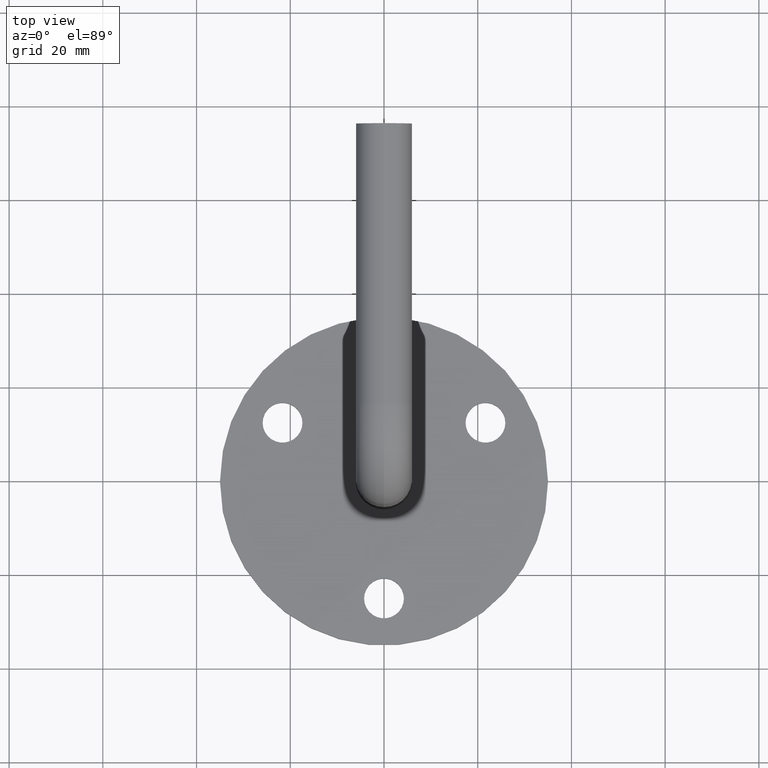
[diagram: clean part render]
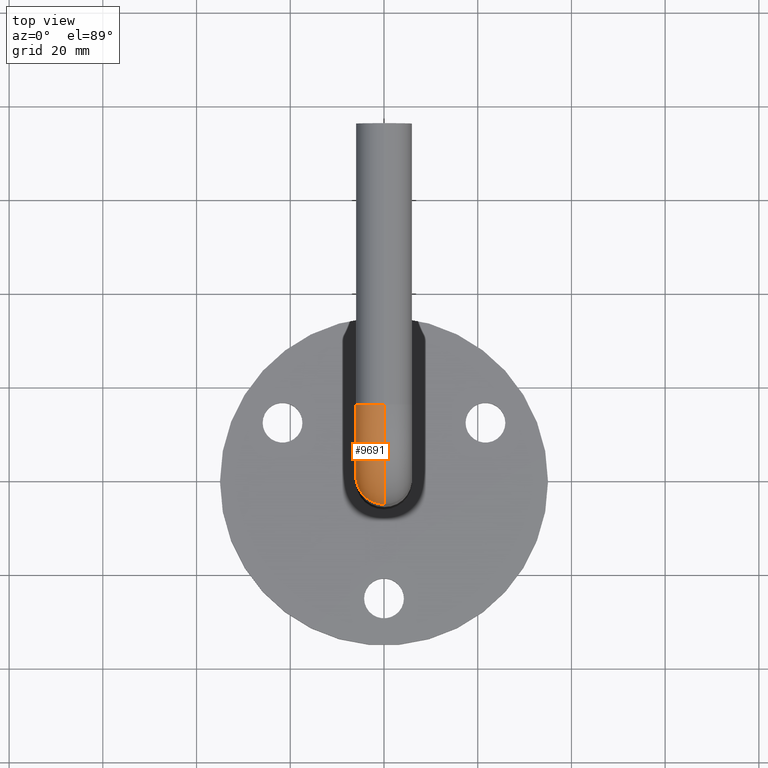
[diagram: same view with one face highlighted and labeled with its STEP entity id]
A machine part, top view. The second image highlights one B-rep face of the part: STEP entity #9691.
In plain terms, the highlighted toroidal blend (fillet) surface has major radius 15 mm and minor (blend) radius 6 mm.
Its self-contained STEP definition (entity closure, byte-faithful):
#337 = CARTESIAN_POINT ( 'NONE',  ( 7.347880794884120722E-16, 14.99999999999999112, 65.00000000000000000 ) ) ;
#923 = CARTESIAN_POINT ( 'NONE',  ( 0.000000000000000000, 14.99999999999999112, 65.00000000000000000 ) ) ;
#2065 = DIRECTION ( 'NONE',  ( -1.000000000000000000, -0.000000000000000000, 0.000000000000000000 ) ) ;
#2244 = DIRECTION ( 'NONE',  ( -1.000000000000000000, -0.000000000000000000, 0.000000000000000000 ) ) ;
#2280 = ORIENTED_EDGE ( 'NONE', *, *, #5494, .T. ) ;
#2287 = VERTEX_POINT ( 'NONE', #4028 ) ;
#3392 = CARTESIAN_POINT ( 'NONE',  ( 0.000000000000000000, 14.99999999999999112, 65.00000000000000000 ) ) ;
#4028 = CARTESIAN_POINT ( 'NONE',  ( 0.000000000000000000, 5.999999999999992895, 64.99999999999988631 ) ) ;
#4719 = DIRECTION ( 'NONE',  ( 0.000000000000000000, 0.000000000000000000, -1.000000000000000000 ) ) ;
#4754 = ORIENTED_EDGE ( 'NONE', *, *, #7521, .F. ) ;
#4774 = VERTEX_POINT ( 'NONE', #10979 ) ;
#5205 = CIRCLE ( 'NONE', #6105, 21.00000000000000355 ) ;
#5414 = AXIS2_PLACEMENT_3D ( 'NONE', #337, #6937, #14839 ) ;
#5494 = EDGE_CURVE ( 'NONE', #13477, #4774, #12696, .T. ) ;
#6105 = AXIS2_PLACEMENT_3D ( 'NONE', #923, #2244, #7249 ) ;
#6531 = CARTESIAN_POINT ( 'NONE',  ( 0.000000000000000000, 15.00000000000018296, 86.00000000000000000 ) ) ;
#6937 = DIRECTION ( 'NONE',  ( -1.000000000000000000, -0.000000000000000000, 0.000000000000000000 ) ) ;
#7249 = DIRECTION ( 'NONE',  ( 0.000000000000000000, 0.000000000000000000, 1.000000000000000000 ) ) ;
#7291 = DIRECTION ( 'NONE',  ( 0.000000000000000000, 0.000000000000000000, 1.000000000000000000 ) ) ;
#7366 = AXIS2_PLACEMENT_3D ( 'NONE', #3392, #2065, #7291 ) ;
#7521 = EDGE_CURVE ( 'NONE', #13592, #2287, #14341, .T. ) ;
#8206 = EDGE_CURVE ( 'NONE', #13592, #13477, #5205, .T. ) ;
#9356 = EDGE_LOOP ( 'NONE', ( #4754, #12149, #2280, #11123 ) ) ;
#9691 = ADVANCED_FACE ( 'NONE', ( #16867 ), #12095, .T. ) ;
#9695 = CIRCLE ( 'NONE', #5414, 8.999999999999994671 ) ;
#10979 = CARTESIAN_POINT ( 'NONE',  ( 7.347880794884114806E-16, 15.00000000000001066, 74.00000000000000000 ) ) ;
#11123 = ORIENTED_EDGE ( 'NONE', *, *, #14883, .F. ) ;
#12095 = TOROIDAL_SURFACE ( 'NONE', #7366, 15.00000000000000000, 6.000000000000000888 ) ;
#12149 = ORIENTED_EDGE ( 'NONE', *, *, #8206, .T. ) ;
#12696 = CIRCLE ( 'NONE', #15434, 6.000000000000000888 ) ;
#13412 = CARTESIAN_POINT ( 'NONE',  ( 0.000000000000000000, 15.00000000000009592, 80.00000000000000000 ) ) ;
#13477 = VERTEX_POINT ( 'NONE', #6531 ) ;
#13592 = VERTEX_POINT ( 'NONE', #14785 ) ;
#13693 = DIRECTION ( 'NONE',  ( -1.000000000000000000, 0.000000000000000000, 0.000000000000000000 ) ) ;
#14125 = CARTESIAN_POINT ( 'NONE',  ( 0.000000000000000000, -7.960204194457784630E-15, 64.99999999999988631 ) ) ;
#14341 = CIRCLE ( 'NONE', #15344, 6.000000000000000888 ) ;
#14785 = CARTESIAN_POINT ( 'NONE',  ( 7.347880794884124666E-16, -6.000000000000009770, 64.99999999999988631 ) ) ;
#14815 = DIRECTION ( 'NONE',  ( 0.000000000000000000, -1.000000000000000000, 1.437166698016966745E-14 ) ) ;
#14839 = DIRECTION ( 'NONE',  ( 0.000000000000000000, 0.000000000000000000, 1.000000000000000000 ) ) ;
#14883 = EDGE_CURVE ( 'NONE', #2287, #4774, #9695, .T. ) ;
#15342 = DIRECTION ( 'NONE',  ( -1.000000000000000000, 0.000000000000000000, 0.000000000000000000 ) ) ;
#15344 = AXIS2_PLACEMENT_3D ( 'NONE', #14125, #4719, #15342 ) ;
#15434 = AXIS2_PLACEMENT_3D ( 'NONE', #13412, #14815, #13693 ) ;
#16867 = FACE_OUTER_BOUND ( 'NONE', #9356, .T. ) ;